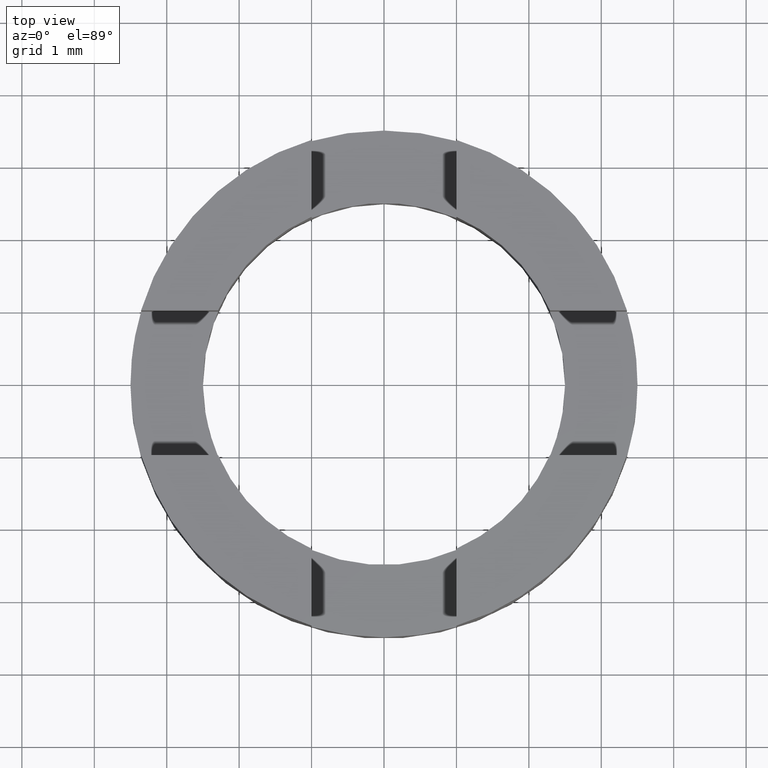
[diagram: clean part render]
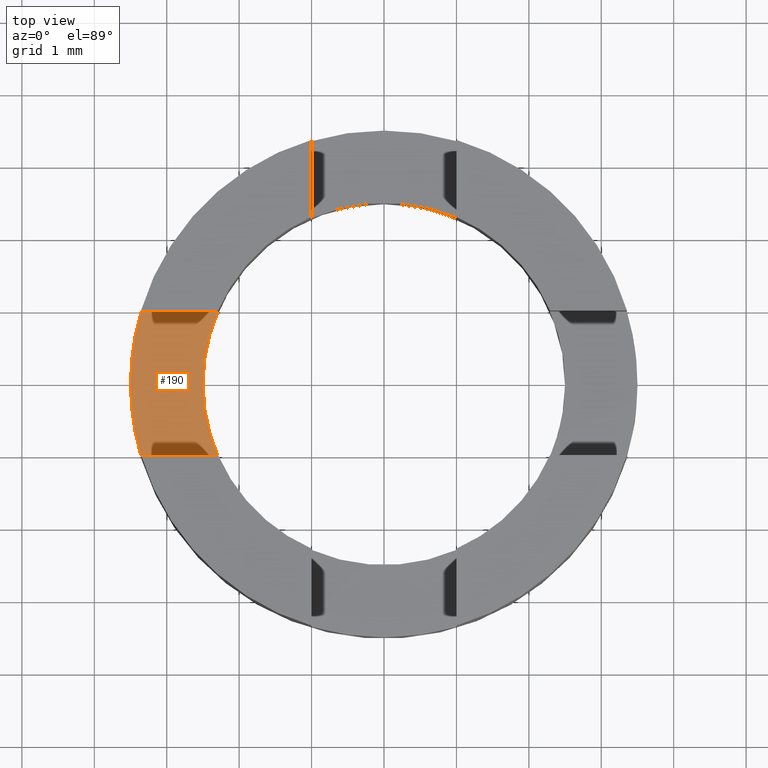
[diagram: same view with one face highlighted and labeled with its STEP entity id]
A machine part, top view. The second image highlights one B-rep face of the part: STEP entity #190.
In plain terms, the highlighted planar face has unit normal (0, 0, -1).
Its self-contained STEP definition (entity closure, byte-faithful):
#15 = FACE_OUTER_BOUND ( 'NONE', #196, .T. ) ;
#32 = CARTESIAN_POINT ( 'NONE',  ( 0.000000000000000000, 0.000000000000000000, 1.000000000000000000 ) ) ;
#39 = CARTESIAN_POINT ( 'NONE',  ( -3.354101966249594557, -1.000000000000301981, 1.000000000000000000 ) ) ;
#58 = CARTESIAN_POINT ( 'NONE',  ( -1.805037895305853235, 0.9999999999996983524, 1.000000000000000000 ) ) ;
#63 = AXIS2_PLACEMENT_3D ( 'NONE', #141, #496, #738 ) ;
#66 = VERTEX_POINT ( 'NONE', #102 ) ;
#68 = ORIENTED_EDGE ( 'NONE', *, *, #197, .T. ) ;
#98 = VERTEX_POINT ( 'NONE', #291 ) ;
#102 = CARTESIAN_POINT ( 'NONE',  ( -2.291287847477788020, -1.000000000000301759, 1.000000000000000000 ) ) ;
#105 = VERTEX_POINT ( 'NONE', #363 ) ;
#141 = CARTESIAN_POINT ( 'NONE',  ( 0.000000000000000000, 0.000000000000000000, 1.000000000000000000 ) ) ;
#164 = CIRCLE ( 'NONE', #283, 2.500000000000000000 ) ;
#183 = ORIENTED_EDGE ( 'NONE', *, *, #755, .F. ) ;
#190 = ADVANCED_FACE ( 'NONE', ( #15 ), #264, .F. ) ;
#195 = CARTESIAN_POINT ( 'NONE',  ( 0.000000000000000000, 0.000000000000000000, 1.000000000000000000 ) ) ;
#196 = EDGE_LOOP ( 'NONE', ( #425, #293, #68, #671, #739, #183 ) ) ;
#197 = EDGE_CURVE ( 'NONE', #66, #105, #502, .T. ) ;
#198 = LINE ( 'NONE', #437, #322 ) ;
#231 = DIRECTION ( 'NONE',  ( -1.000000000000000000, 0.000000000000000000, 0.000000000000000000 ) ) ;
#232 = EDGE_CURVE ( 'NONE', #536, #66, #198, .T. ) ;
#264 = PLANE ( 'NONE',  #481 ) ;
#283 = AXIS2_PLACEMENT_3D ( 'NONE', #776, #766, #231 ) ;
#291 = CARTESIAN_POINT ( 'NONE',  ( -3.354101966249774858, 0.9999999999996979083, 1.000000000000000000 ) ) ;
#293 = ORIENTED_EDGE ( 'NONE', *, *, #232, .T. ) ;
#302 = DIRECTION ( 'NONE',  ( 0.000000000000000000, -0.000000000000000000, -1.000000000000000000 ) ) ;
#310 = CARTESIAN_POINT ( 'NONE',  ( 0.000000000000000000, 0.000000000000000000, 1.000000000000000000 ) ) ;
#321 = VERTEX_POINT ( 'NONE', #515 ) ;
#322 = VECTOR ( 'NONE', #370, 1000.000000000000000 ) ;
#354 = DIRECTION ( 'NONE',  ( -1.000000000000000000, 0.000000000000000000, 0.000000000000000000 ) ) ;
#363 = CARTESIAN_POINT ( 'NONE',  ( -2.500000000000000000, 0.000000000000000000, 1.000000000000000000 ) ) ;
#365 = LINE ( 'NONE', #58, #381 ) ;
#370 = DIRECTION ( 'NONE',  ( 1.000000000000000000, 2.558646401551673950E-16, -0.000000000000000000 ) ) ;
#381 = VECTOR ( 'NONE', #539, 1000.000000000000000 ) ;
#425 = ORIENTED_EDGE ( 'NONE', *, *, #614, .F. ) ;
#437 = CARTESIAN_POINT ( 'NONE',  ( -1.805037895305852569, -1.000000000000301537, 1.000000000000000000 ) ) ;
#440 = VERTEX_POINT ( 'NONE', #526 ) ;
#478 = EDGE_CURVE ( 'NONE', #105, #321, #164, .T. ) ;
#481 = AXIS2_PLACEMENT_3D ( 'NONE', #195, #610, #677 ) ;
#496 = DIRECTION ( 'NONE',  ( 0.000000000000000000, -0.000000000000000000, -1.000000000000000000 ) ) ;
#502 = CIRCLE ( 'NONE', #63, 2.500000000000000000 ) ;
#515 = CARTESIAN_POINT ( 'NONE',  ( -2.291287847478052253, 0.9999999999996981304, 1.000000000000000000 ) ) ;
#526 = CARTESIAN_POINT ( 'NONE',  ( -3.500000000000000000, 0.000000000000000000, 1.000000000000000000 ) ) ;
#536 = VERTEX_POINT ( 'NONE', #39 ) ;
#539 = DIRECTION ( 'NONE',  ( -1.000000000000000000, -2.558646401551674936E-16, 0.000000000000000000 ) ) ;
#559 = EDGE_CURVE ( 'NONE', #321, #98, #365, .T. ) ;
#572 = DIRECTION ( 'NONE',  ( -1.000000000000000000, 0.000000000000000000, 0.000000000000000000 ) ) ;
#610 = DIRECTION ( 'NONE',  ( 0.000000000000000000, 0.000000000000000000, -1.000000000000000000 ) ) ;
#614 = EDGE_CURVE ( 'NONE', #536, #440, #680, .T. ) ;
#618 = AXIS2_PLACEMENT_3D ( 'NONE', #310, #302, #354 ) ;
#640 = DIRECTION ( 'NONE',  ( 0.000000000000000000, -0.000000000000000000, -1.000000000000000000 ) ) ;
#671 = ORIENTED_EDGE ( 'NONE', *, *, #478, .T. ) ;
#677 = DIRECTION ( 'NONE',  ( -1.000000000000000000, 0.000000000000000000, -0.000000000000000000 ) ) ;
#680 = CIRCLE ( 'NONE', #618, 3.500000000000000000 ) ;
#694 = CIRCLE ( 'NONE', #732, 3.500000000000000000 ) ;
#732 = AXIS2_PLACEMENT_3D ( 'NONE', #32, #640, #572 ) ;
#738 = DIRECTION ( 'NONE',  ( -1.000000000000000000, 0.000000000000000000, 0.000000000000000000 ) ) ;
#739 = ORIENTED_EDGE ( 'NONE', *, *, #559, .T. ) ;
#755 = EDGE_CURVE ( 'NONE', #440, #98, #694, .T. ) ;
#766 = DIRECTION ( 'NONE',  ( 0.000000000000000000, -0.000000000000000000, -1.000000000000000000 ) ) ;
#776 = CARTESIAN_POINT ( 'NONE',  ( 0.000000000000000000, 0.000000000000000000, 1.000000000000000000 ) ) ;